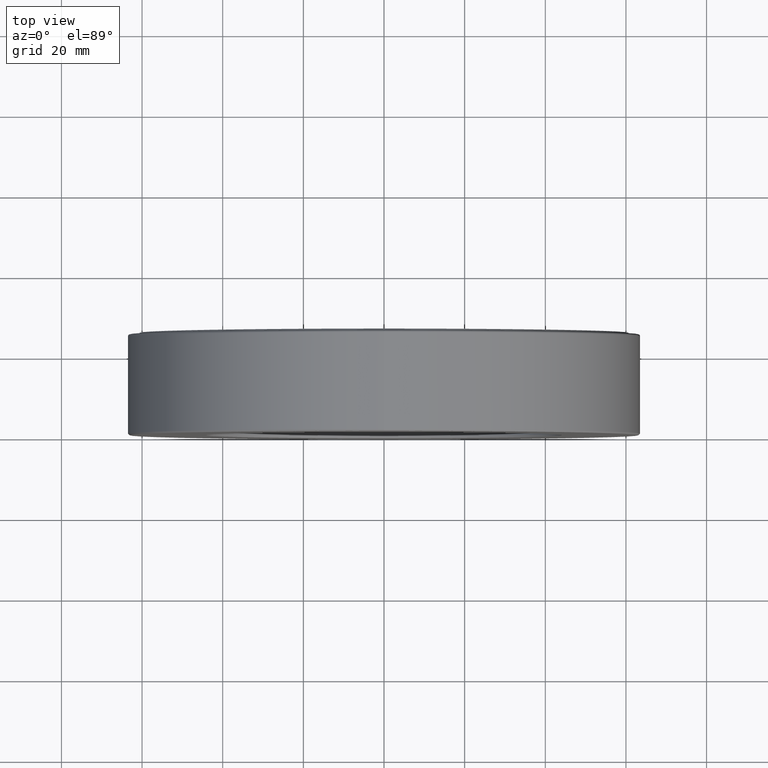
[diagram: clean part render]
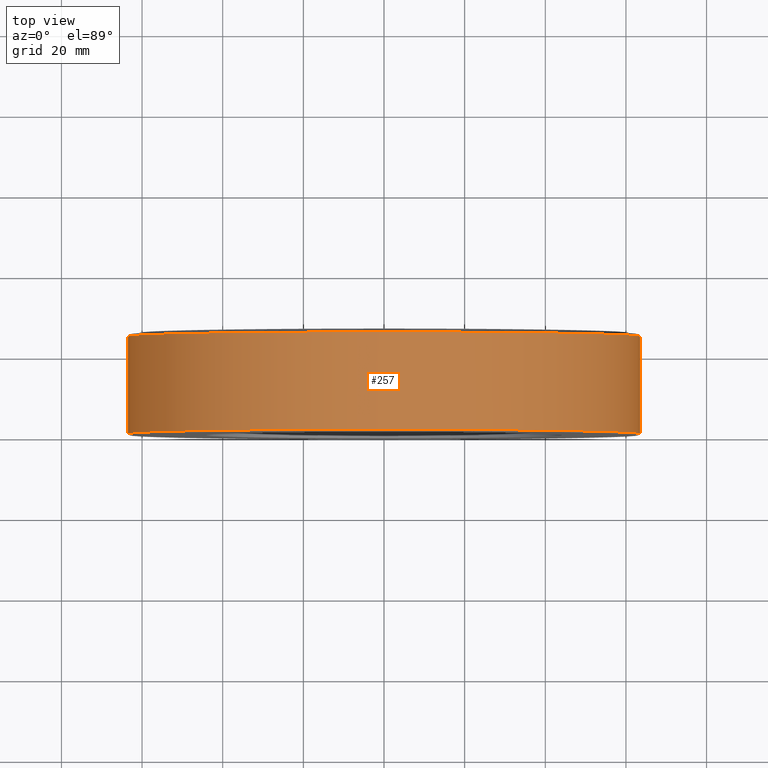
[diagram: same view with one face highlighted and labeled with its STEP entity id]
A machine part, top view. The second image highlights one B-rep face of the part: STEP entity #257.
In plain terms, the highlighted cylindrical surface (bore or boss wall) has radius 63.5 mm, axis along (-0, 1, -0).
Its self-contained STEP definition (entity closure, byte-faithful):
#66 = DIRECTION ( 'NONE',  ( 0.0000000000000000000, 0.0000000000000000000, 1.000000000000000000 ) ) ;
#105 = CARTESIAN_POINT ( 'NONE',  ( 0.0000000000000000000, 0.0000000000000000000, 0.0000000000000000000 ) ) ;
#116 = FACE_OUTER_BOUND ( 'NONE', #179, .T. ) ;
#122 = CARTESIAN_POINT ( 'NONE',  ( 0.0000000000000000000, 0.01500000000000052300, 2.499999999999999600 ) ) ;
#124 = CIRCLE ( 'NONE', #244, 2.500000000000000000 ) ;
#156 = EDGE_LOOP ( 'NONE', ( #504 ) ) ;
#179 = EDGE_LOOP ( 'NONE', ( #489 ) ) ;
#235 = DIRECTION ( 'NONE',  ( -0.0000000000000000000, 1.000000000000000000, -0.0000000000000000000 ) ) ;
#244 = AXIS2_PLACEMENT_3D ( 'NONE', #289, #582, #432 ) ;
#250 = DIRECTION ( 'NONE',  ( 0.0000000000000000000, 0.0000000000000000000, 1.000000000000000000 ) ) ;
#257 = ADVANCED_FACE ( 'NONE', ( #525, #116 ), #549, .T. ) ;
#289 = CARTESIAN_POINT ( 'NONE',  ( 0.0000000000000000000, 0.9649999999999996400, 0.0000000000000000000 ) ) ;
#314 = EDGE_CURVE ( 'NONE', #485, #485, #124, .T. ) ;
#362 = CIRCLE ( 'NONE', #506, 2.499999999999999600 ) ;
#432 = DIRECTION ( 'NONE',  ( 0.0000000000000000000, 0.0000000000000000000, 1.000000000000000000 ) ) ;
#435 = AXIS2_PLACEMENT_3D ( 'NONE', #105, #235, #66 ) ;
#455 = EDGE_CURVE ( 'NONE', #583, #583, #362, .T. ) ;
#485 = VERTEX_POINT ( 'NONE', #552 ) ;
#489 = ORIENTED_EDGE ( 'NONE', *, *, #455, .T. ) ;
#504 = ORIENTED_EDGE ( 'NONE', *, *, #314, .F. ) ;
#506 = AXIS2_PLACEMENT_3D ( 'NONE', #593, #535, #250 ) ;
#525 = FACE_OUTER_BOUND ( 'NONE', #156, .T. ) ;
#535 = DIRECTION ( 'NONE',  ( -0.0000000000000000000, 1.000000000000000000, -0.0000000000000000000 ) ) ;
#549 = CYLINDRICAL_SURFACE ( 'NONE', #435, 2.500000000000000000 ) ;
#552 = CARTESIAN_POINT ( 'NONE',  ( 0.0000000000000000000, 0.9649999999999996400, 2.500000000000000000 ) ) ;
#582 = DIRECTION ( 'NONE',  ( -0.0000000000000000000, 1.000000000000000000, -0.0000000000000000000 ) ) ;
#583 = VERTEX_POINT ( 'NONE', #122 ) ;
#593 = CARTESIAN_POINT ( 'NONE',  ( 0.0000000000000000000, 0.01500000000000052300, 0.0000000000000000000 ) ) ;